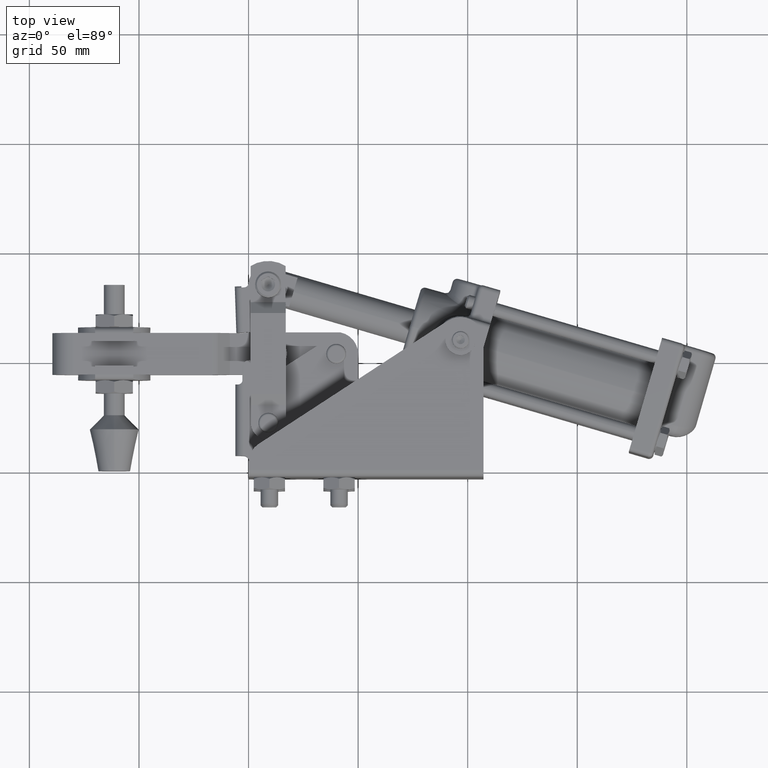
[diagram: clean part render]
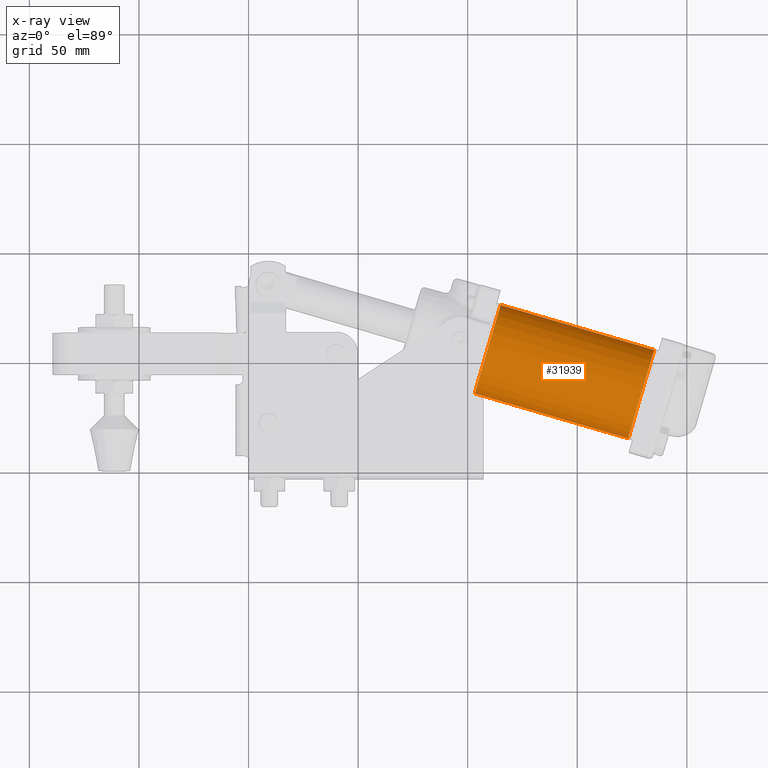
[diagram: x-ray — body ghosted, one internal face saturated and labeled with its STEP entity id]
A machine part, top view, then the same camera in x-ray: the body is ghosted and one INTERNAL B-rep face — a face not visible from any outside direction — is saturated and labeled: STEP entity #31939.
In plain terms, the highlighted cylindrical surface (partial cylindrical patch) has radius 21 mm, axis along (-0.9597, 0.281, 0).
Its self-contained STEP definition (entity closure, byte-faithful):
#346 = LINE ( 'NONE', #6143, #6387 ) ;
#1665 = EDGE_LOOP ( 'NONE', ( #8385, #17792, #2087, #14660 ) ) ;
#1688 = EDGE_CURVE ( 'NONE', #3173, #4449, #19597, .T. ) ;
#1718 = DIRECTION ( 'NONE',  ( 0.9596985987848241100, -0.2810313140745087600, -2.000102180355001100E-016 ) ) ;
#2087 = ORIENTED_EDGE ( 'NONE', *, *, #1688, .T. ) ;
#3173 = VERTEX_POINT ( 'NONE', #14032 ) ;
#4435 = CYLINDRICAL_SURFACE ( 'NONE', #5738, 20.99999999999999600 ) ;
#4449 = VERTEX_POINT ( 'NONE', #21064 ) ;
#4997 = CARTESIAN_POINT ( 'NONE',  ( 59.17608178420271500, 55.64659291703138400, -4.622327783389769500E-016 ) ) ;
#5738 = AXIS2_PLACEMENT_3D ( 'NONE', #32603, #12017, #9397 ) ;
#6053 = FACE_OUTER_BOUND ( 'NONE', #1665, .T. ) ;
#6143 = CARTESIAN_POINT ( 'NONE',  ( 194.0583228046913300, 38.03050651166496700, -2.477124169707184500E-014 ) ) ;
#6387 = VECTOR ( 'NONE', #24290, 1000.000000000000000 ) ;
#6971 = VERTEX_POINT ( 'NONE', #14773 ) ;
#7599 = DIRECTION ( 'NONE',  ( 0.2810313140745092100, 0.9596985987848240000, 0.0000000000000000000 ) ) ;
#8385 = ORIENTED_EDGE ( 'NONE', *, *, #18762, .F. ) ;
#9026 = VERTEX_POINT ( 'NONE', #25203 ) ;
#9273 = CIRCLE ( 'NONE', #10316, 20.99999999999999600 ) ;
#9397 = DIRECTION ( 'NONE',  ( -0.2810313140745088800, -0.9596985987848241100, 0.0000000000000000000 ) ) ;
#10316 = AXIS2_PLACEMENT_3D ( 'NONE', #4997, #23129, #7599 ) ;
#12017 = DIRECTION ( 'NONE',  ( -0.9596985987848241100, 0.2810313140745088800, 2.000102180355121700E-016 ) ) ;
#13696 = CIRCLE ( 'NONE', #24198, 21.00000000000000000 ) ;
#14032 = CARTESIAN_POINT ( 'NONE',  ( 123.3324218999301800, 14.97763641511093800, -1.506297869493136200E-014 ) ) ;
#14660 = ORIENTED_EDGE ( 'NONE', *, *, #32107, .F. ) ;
#14773 = CARTESIAN_POINT ( 'NONE',  ( 65.07773937976743600, 75.80026349151266600, 2.109525499870459000E-015 ) ) ;
#15879 = EDGE_CURVE ( 'NONE', #9026, #3173, #13696, .T. ) ;
#17238 = CARTESIAN_POINT ( 'NONE',  ( 129.2340794954948800, 35.13130698959224000, -1.506297869493136200E-014 ) ) ;
#17792 = ORIENTED_EDGE ( 'NONE', *, *, #15879, .T. ) ;
#18762 = EDGE_CURVE ( 'NONE', #9026, #6971, #346, .T. ) ;
#19597 = LINE ( 'NONE', #20869, #32524 ) ;
#19843 = DIRECTION ( 'NONE',  ( 0.2810313140745088200, 0.9596985987848241100, 0.0000000000000000000 ) ) ;
#20869 = CARTESIAN_POINT ( 'NONE',  ( 182.2550076135619600, -2.276834637297640000, -2.734299997528128600E-014 ) ) ;
#21064 = CARTESIAN_POINT ( 'NONE',  ( 53.27442418863802900, 35.49292234255007400, -4.622327783389769500E-016 ) ) ;
#23129 = DIRECTION ( 'NONE',  ( 0.9596985987848242200, -0.2810313140745089300, -2.000102180355122200E-016 ) ) ;
#24198 = AXIS2_PLACEMENT_3D ( 'NONE', #17238, #1718, #19843 ) ;
#24290 = DIRECTION ( 'NONE',  ( -0.9596985987848241100, 0.2810313140745088800, 2.000102180355121700E-016 ) ) ;
#25203 = CARTESIAN_POINT ( 'NONE',  ( 135.1357370910595500, 55.28497756407353600, -1.249122041672192000E-014 ) ) ;
#26006 = DIRECTION ( 'NONE',  ( -0.9596985987848241100, 0.2810313140745088800, 2.000102180355121700E-016 ) ) ;
#31939 = ADVANCED_FACE ( 'NONE', ( #6053 ), #4435, .F. ) ;
#32107 = EDGE_CURVE ( 'NONE', #6971, #4449, #9273, .T. ) ;
#32524 = VECTOR ( 'NONE', #26006, 1000.000000000000000 ) ;
#32603 = CARTESIAN_POINT ( 'NONE',  ( 188.1566652091266300, 17.87683593718366400, -2.734299997528128600E-014 ) ) ;